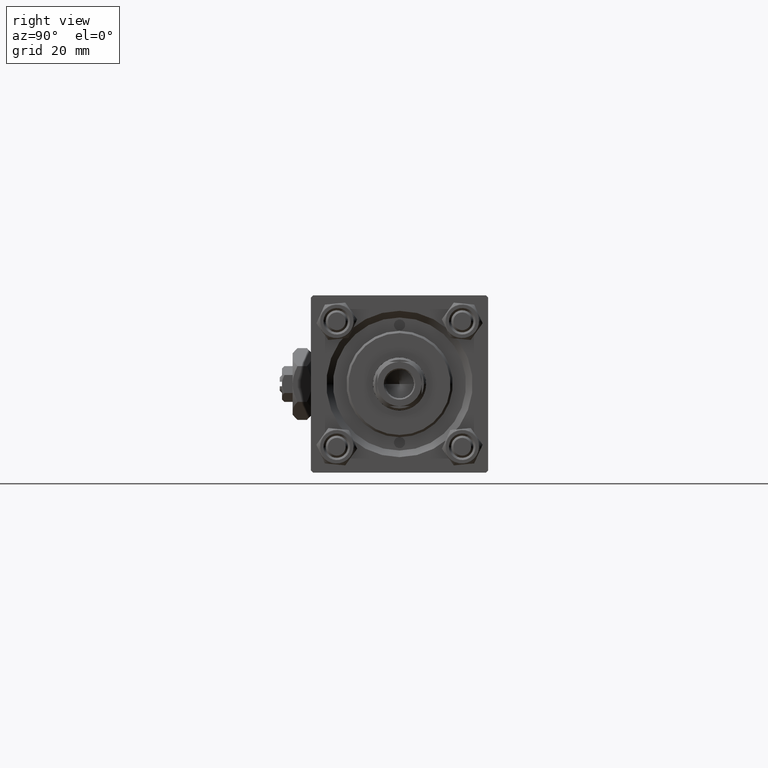
[diagram: clean part render]
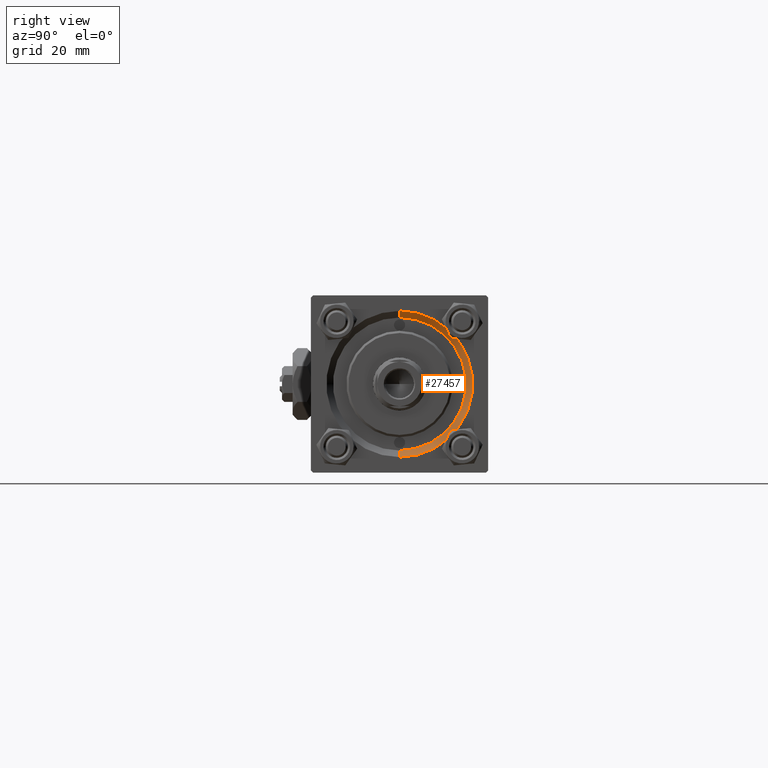
[diagram: same view with one face highlighted and labeled with its STEP entity id]
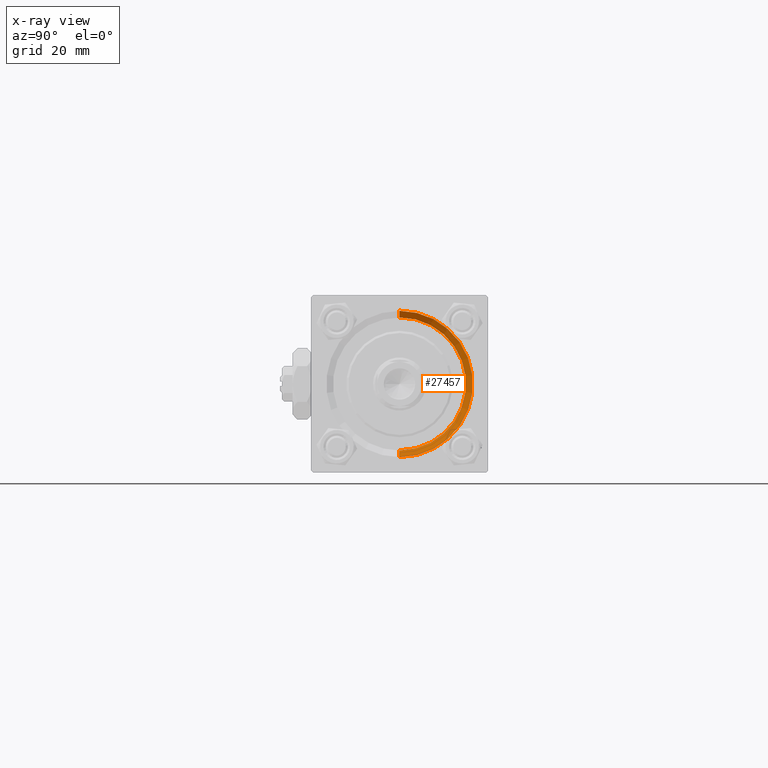
[diagram: x-ray of the same camera — body ghosted, the highlighted face saturated]
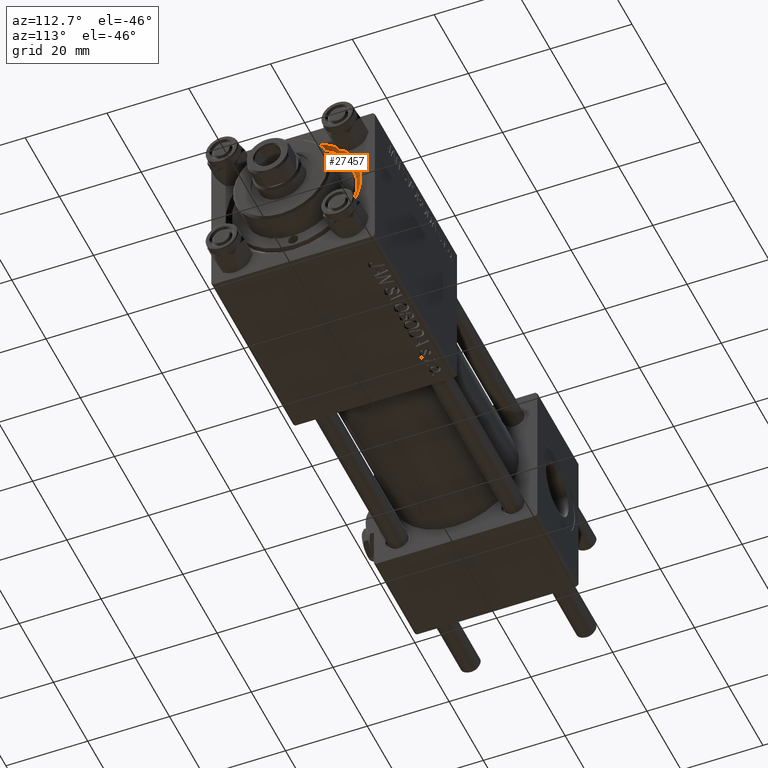
[diagram: same view with one face highlighted and labeled with its STEP entity id]
A machine part, right view. The second image highlights one B-rep face of the part: STEP entity #27457.
The next image is the same camera in x-ray: the body ghosted, the highlighted face saturated — about 0% of this face is hidden behind the body in this view.
A second angle (auxiliary view) of the same face is appended — the face is thin or edge-on in the first view.
In plain terms, the highlighted conical surface has half-angle 45 deg.
Its self-contained STEP definition (entity closure, byte-faithful):
#317 = CARTESIAN_POINT ( 'NONE',  ( 117.5000000000000000, 1.836970198721029589E-15, 15.00000000000000000 ) ) ;
#2150 = DIRECTION ( 'NONE',  ( 0.000000000000000000, 0.000000000000000000, 1.000000000000000000 ) ) ;
#3057 = CARTESIAN_POINT ( 'NONE',  ( 117.5000000000000000, 1.836970198721029589E-15, 15.00000000000000000 ) ) ;
#3665 = DIRECTION ( 'NONE',  ( 1.000000000000000000, 0.000000000000000000, 0.000000000000000000 ) ) ;
#5526 = DIRECTION ( 'NONE',  ( -1.000000000000000000, -0.000000000000000000, -0.000000000000000000 ) ) ;
#6339 = CARTESIAN_POINT ( 'NONE',  ( 117.5000000000000000, 0.000000000000000000, -15.00000000000000000 ) ) ;
#7519 = CIRCLE ( 'NONE', #51599, 15.00000000000000000 ) ;
#10767 = DIRECTION ( 'NONE',  ( 0.000000000000000000, 0.000000000000000000, -1.000000000000000000 ) ) ;
#10964 = VERTEX_POINT ( 'NONE', #30528 ) ;
#11335 = EDGE_CURVE ( 'NONE', #43213, #34930, #32015, .T. ) ;
#12516 = CARTESIAN_POINT ( 'NONE',  ( 117.5000000000000000, 0.000000000000000000, 0.000000000000000000 ) ) ;
#14681 = CARTESIAN_POINT ( 'NONE',  ( 117.5000000000000000, 0.000000000000000000, 0.000000000000000000 ) ) ;
#15084 = ORIENTED_EDGE ( 'NONE', *, *, #11335, .F. ) ;
#16667 = EDGE_LOOP ( 'NONE', ( #15084, #28755, #43960, #28796 ) ) ;
#17842 = FACE_OUTER_BOUND ( 'NONE', #16667, .T. ) ;
#18114 = VECTOR ( 'NONE', #42607, 1000.000000000000114 ) ;
#20835 = VECTOR ( 'NONE', #23898, 1000.000000000000114 ) ;
#22216 = CARTESIAN_POINT ( 'NONE',  ( 119.0000000000000142, 2.020667218593134678E-15, 16.50000000000001421 ) ) ;
#22281 = CONICAL_SURFACE ( 'NONE', #28131, 15.00000000000000000, 0.7853981633974482790 ) ;
#23898 = DIRECTION ( 'NONE',  ( 0.7071067811865474617, 8.659560562354932858E-17, 0.7071067811865474617 ) ) ;
#24008 = DIRECTION ( 'NONE',  ( 0.000000000000000000, 0.000000000000000000, 1.000000000000000000 ) ) ;
#27457 = ADVANCED_FACE ( 'NONE', ( #17842 ), #22281, .F. ) ;
#27463 = EDGE_CURVE ( 'NONE', #31314, #10964, #42346, .T. ) ;
#28131 = AXIS2_PLACEMENT_3D ( 'NONE', #14681, #46276, #10767 ) ;
#28755 = ORIENTED_EDGE ( 'NONE', *, *, #35006, .F. ) ;
#28796 = ORIENTED_EDGE ( 'NONE', *, *, #34849, .F. ) ;
#30528 = CARTESIAN_POINT ( 'NONE',  ( 119.0000000000000142, 0.000000000000000000, -16.50000000000001421 ) ) ;
#31314 = VERTEX_POINT ( 'NONE', #34878 ) ;
#32015 = LINE ( 'NONE', #3057, #20835 ) ;
#34849 = EDGE_CURVE ( 'NONE', #34930, #10964, #46616, .T. ) ;
#34878 = CARTESIAN_POINT ( 'NONE',  ( 117.5000000000000000, 0.000000000000000000, -15.00000000000000000 ) ) ;
#34930 = VERTEX_POINT ( 'NONE', #22216 ) ;
#35006 = EDGE_CURVE ( 'NONE', #31314, #43213, #7519, .T. ) ;
#42346 = LINE ( 'NONE', #6339, #18114 ) ;
#42607 = DIRECTION ( 'NONE',  ( 0.7071067811865474617, 0.000000000000000000, -0.7071067811865474617 ) ) ;
#43213 = VERTEX_POINT ( 'NONE', #317 ) ;
#43960 = ORIENTED_EDGE ( 'NONE', *, *, #27463, .T. ) ;
#45207 = CARTESIAN_POINT ( 'NONE',  ( 119.0000000000000142, 0.000000000000000000, 0.000000000000000000 ) ) ;
#45757 = AXIS2_PLACEMENT_3D ( 'NONE', #45207, #5526, #2150 ) ;
#46276 = DIRECTION ( 'NONE',  ( 1.000000000000000000, 0.000000000000000000, 0.000000000000000000 ) ) ;
#46616 = CIRCLE ( 'NONE', #45757, 16.50000000000001421 ) ;
#51599 = AXIS2_PLACEMENT_3D ( 'NONE', #12516, #3665, #24008 ) ;